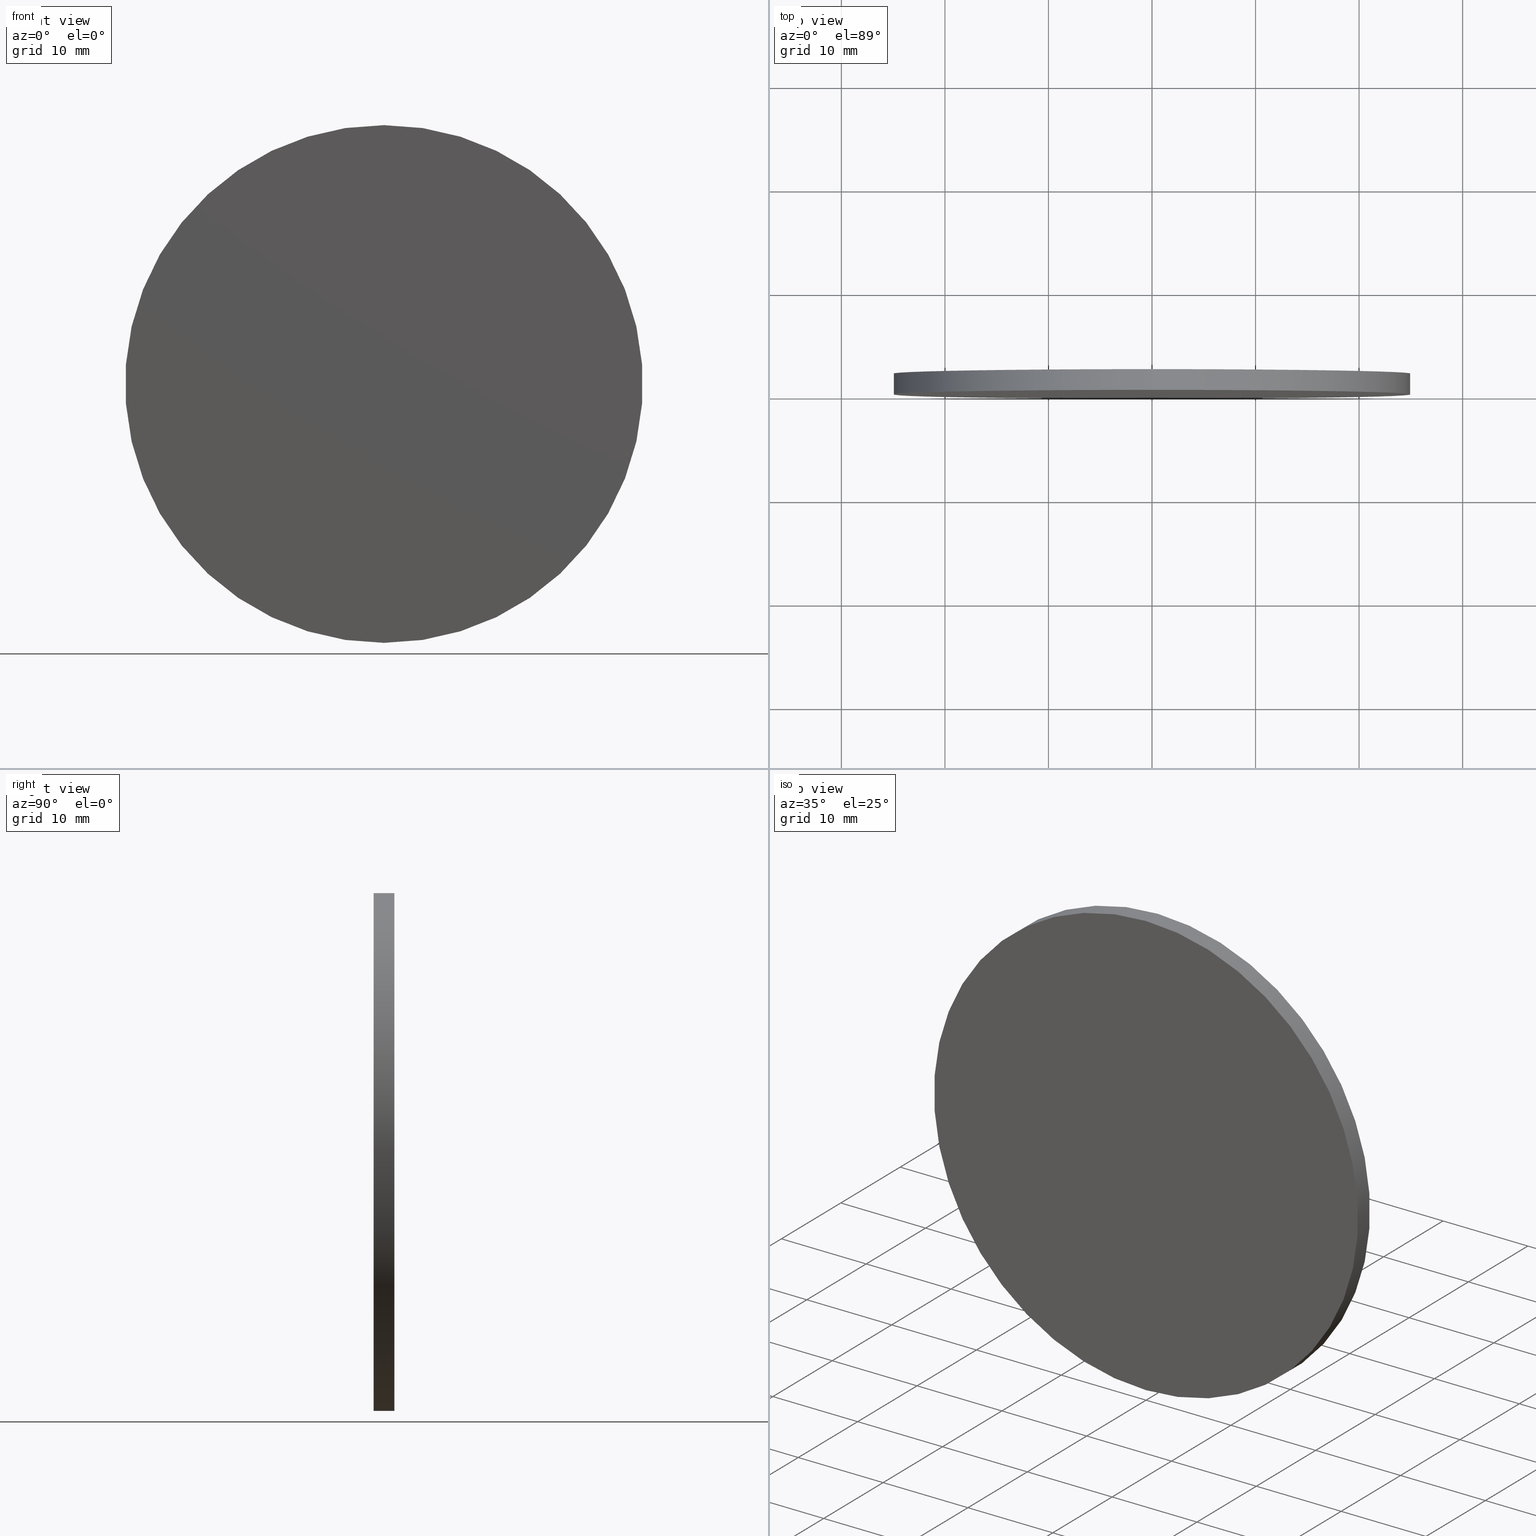
[diagram: canonical four-view strip — front | top / right | iso, engineering-drawing reading convention]
A machine part, canonical four-view strip (front | top / right | iso — engineering-drawing reading convention). The complete STEP part file that produces these views, byte-faithful:
ISO-10303-21;
HEADER;
FILE_DESCRIPTION (( 'STEP AP214' ),
    '1' );
FILE_NAME ('218558.STEP',
    '2019-07-29T07:33:09',
    ( 'user' ),
    ( '΢���й�' ),
    'SwSTEP 2.0',
    'SolidWorks 2016',
    '' );
FILE_SCHEMA (( 'AUTOMOTIVE_DESIGN' ));
ENDSEC;

DATA;
#1 = VERTEX_POINT ( 'NONE', #124 ) ;
#2 = ADVANCED_FACE ( 'NONE', ( #94 ), #73, .T. ) ;
#3 = SURFACE_STYLE_FILL_AREA ( #19 ) ;
#4 = PRESENTATION_LAYER_ASSIGNMENT (  '', '', ( #138 ) ) ;
#5 = APPLICATION_PROTOCOL_DEFINITION ( 'draft international standard', 'automotive_design', 1998, #77 ) ;
#6 = EDGE_LOOP ( 'NONE', ( #89, #108 ) ) ;
#7 = CARTESIAN_POINT ( 'NONE',  ( 3.061616997868383000E-015, 0.0000000000000000000, 25.00000000000000000 ) ) ;
#8 = SURFACE_STYLE_USAGE ( .BOTH. , #80 ) ;
#9 = COLOUR_RGB ( '',1.000000000000000000, 1.000000000000000000, 1.000000000000000000 ) ;
#10 = ORIENTED_EDGE ( 'NONE', *, *, #63, .F. ) ;
#11 = PRESENTATION_LAYER_ASSIGNMENT (  '', '', ( #140 ) ) ;
#12 = CYLINDRICAL_SURFACE ( 'NONE', #32, 25.00000000000000000 ) ;
#13 = MECHANICAL_DESIGN_GEOMETRIC_PRESENTATION_REPRESENTATION (  '', ( #138 ), #20 ) ;
#14 = ADVANCED_FACE ( 'NONE', ( #15 ), #102, .T. ) ;
#15 = FACE_OUTER_BOUND ( 'NONE', #100, .T. ) ;
#16 = SHAPE_DEFINITION_REPRESENTATION ( #24, #121 ) ;
#17 = PRODUCT_CONTEXT ( 'NONE', #67, 'mechanical' ) ;
#18 = DIRECTION ( 'NONE',  ( 0.0000000000000000000, -0.0000000000000000000, 1.000000000000000000 ) ) ;
#19 = FILL_AREA_STYLE ('',( #117 ) ) ;
#20 =( GEOMETRIC_REPRESENTATION_CONTEXT ( 3 ) GLOBAL_UNCERTAINTY_ASSIGNED_CONTEXT ( ( #120 ) ) GLOBAL_UNIT_ASSIGNED_CONTEXT ( ( #47, #112, #37 ) ) REPRESENTATION_CONTEXT ( 'NONE', 'WORKASPACE' ) );
#21 = CARTESIAN_POINT ( 'NONE',  ( 0.0000000000000000000, 2.000000000000000000, -25.00000000000000000 ) ) ;
#22 = DIRECTION ( 'NONE',  ( 0.0000000000000000000, 0.0000000000000000000, -1.000000000000000000 ) ) ;
#23 = FACE_OUTER_BOUND ( 'NONE', #36, .T. ) ;
#24 = PRODUCT_DEFINITION_SHAPE ( 'NONE', 'NONE',  #46 ) ;
#25 = CIRCLE ( 'NONE', #101, 25.00000000000000000 ) ;
#26 = DIRECTION ( 'NONE',  ( 0.0000000000000000000, 0.0000000000000000000, 1.000000000000000000 ) ) ;
#27 =( NAMED_UNIT ( * ) PLANE_ANGLE_UNIT ( ) SI_UNIT ( $, .RADIAN. ) );
#28 = DIRECTION ( 'NONE',  ( 0.0000000000000000000, 1.000000000000000000, 0.0000000000000000000 ) ) ;
#29 = DIRECTION ( 'NONE',  ( 0.0000000000000000000, -0.0000000000000000000, 1.000000000000000000 ) ) ;
#30 = DIRECTION ( 'NONE',  ( -0.0000000000000000000, -1.000000000000000000, -0.0000000000000000000 ) ) ;
#31 = ORIENTED_EDGE ( 'NONE', *, *, #87, .F. ) ;
#32 = AXIS2_PLACEMENT_3D ( 'NONE', #97, #72, #129 ) ;
#33 = PRESENTATION_STYLE_ASSIGNMENT (( #8 ) ) ;
#34 = VERTEX_POINT ( 'NONE', #21 ) ;
#35 = EDGE_CURVE ( 'NONE', #34, #1, #122, .T. ) ;
#36 = EDGE_LOOP ( 'NONE', ( #10, #86, #53, #56 ) ) ;
#37 =( NAMED_UNIT ( * ) SI_UNIT ( $, .STERADIAN. ) SOLID_ANGLE_UNIT ( ) );
#38 = AXIS2_PLACEMENT_3D ( 'NONE', #116, #92, #18 ) ;
#39 = DIRECTION ( 'NONE',  ( 0.0000000000000000000, 0.0000000000000000000, 1.000000000000000000 ) ) ;
#40 = CARTESIAN_POINT ( 'NONE',  ( 0.0000000000000000000, 0.0000000000000000000, 0.0000000000000000000 ) ) ;
#41 = DIRECTION ( 'NONE',  ( 0.0000000000000000000, 1.000000000000000000, 0.0000000000000000000 ) ) ;
#42 = AXIS2_PLACEMENT_3D ( 'NONE', #40, #26, #90 ) ;
#43 = CARTESIAN_POINT ( 'NONE',  ( 0.0000000000000000000, 2.000000000000000000, 0.0000000000000000000 ) ) ;
#44 = EDGE_CURVE ( 'NONE', #34, #64, #48, .T. ) ;
#45 = MECHANICAL_DESIGN_GEOMETRIC_PRESENTATION_REPRESENTATION (  '', ( #140 ), #132 ) ;
#46 = PRODUCT_DEFINITION ( 'δ֪', '', #52, #84 ) ;
#47 =( LENGTH_UNIT ( ) NAMED_UNIT ( * ) SI_UNIT ( .MILLI., .METRE. ) );
#48 = CIRCLE ( 'NONE', #83, 25.00000000000000000 ) ;
#49 = DIRECTION ( 'NONE',  ( 0.0000000000000000000, 0.0000000000000000000, 1.000000000000000000 ) ) ;
#50 = CIRCLE ( 'NONE', #66, 25.00000000000000000 ) ;
#51 = COLOUR_RGB ( '',1.000000000000000000, 1.000000000000000000, 1.000000000000000000 ) ;
#52 = PRODUCT_DEFINITION_FORMATION_WITH_SPECIFIED_SOURCE ( '�κ�', '', #65, .NOT_KNOWN. ) ;
#53 = ORIENTED_EDGE ( 'NONE', *, *, #109, .T. ) ;
#54 = ADVANCED_FACE ( 'NONE', ( #23 ), #12, .T. ) ;
#55 = EDGE_CURVE ( 'NONE', #1, #123, #85, .T. ) ;
#56 = ORIENTED_EDGE ( 'NONE', *, *, #35, .F. ) ;
#57 = SURFACE_SIDE_STYLE ('',( #111 ) ) ;
#58 =( LENGTH_UNIT ( ) NAMED_UNIT ( * ) SI_UNIT ( .MILLI., .METRE. ) );
#59 =( NAMED_UNIT ( * ) SI_UNIT ( $, .STERADIAN. ) SOLID_ANGLE_UNIT ( ) );
#60 = CARTESIAN_POINT ( 'NONE',  ( 0.0000000000000000000, 0.0000000000000000000, 0.0000000000000000000 ) ) ;
#61 = PRODUCT_RELATED_PRODUCT_CATEGORY ( 'part', '', ( #65 ) ) ;
#62 = ORIENTED_EDGE ( 'NONE', *, *, #55, .T. ) ;
#63 = EDGE_CURVE ( 'NONE', #64, #34, #25, .T. ) ;
#64 = VERTEX_POINT ( 'NONE', #137 ) ;
#65 = PRODUCT ( '218558', '218558', '', ( #17 ) ) ;
#66 = AXIS2_PLACEMENT_3D ( 'NONE', #126, #114, #39 ) ;
#67 = APPLICATION_CONTEXT ( 'automotive_design' ) ;
#68 =( LENGTH_UNIT ( ) NAMED_UNIT ( * ) SI_UNIT ( .MILLI., .METRE. ) );
#69 = AXIS2_PLACEMENT_3D ( 'NONE', #43, #106, #22 ) ;
#70 = PRESENTATION_STYLE_ASSIGNMENT (( #125 ) ) ;
#71 = DIRECTION ( 'NONE',  ( -0.0000000000000000000, -1.000000000000000000, -0.0000000000000000000 ) ) ;
#72 = DIRECTION ( 'NONE',  ( -0.0000000000000000000, -1.000000000000000000, -0.0000000000000000000 ) ) ;
#73 = PLANE ( 'NONE',  #95 ) ;
#74 = CARTESIAN_POINT ( 'NONE',  ( 0.0000000000000000000, 2.000000000000000000, 0.0000000000000000000 ) ) ;
#75 =( GEOMETRIC_REPRESENTATION_CONTEXT ( 3 ) GLOBAL_UNCERTAINTY_ASSIGNED_CONTEXT ( ( #88 ) ) GLOBAL_UNIT_ASSIGNED_CONTEXT ( ( #58, #27, #91 ) ) REPRESENTATION_CONTEXT ( 'NONE', 'WORKASPACE' ) );
#76 = MANIFOLD_SOLID_BREP ( '͹̨-����1', #130 ) ;
#77 = APPLICATION_CONTEXT ( 'automotive_design' ) ;
#78 = APPLICATION_PROTOCOL_DEFINITION ( 'draft international standard', 'automotive_design', 1998, #67 ) ;
#79 = ORIENTED_EDGE ( 'NONE', *, *, #35, .T. ) ;
#80 = SURFACE_SIDE_STYLE ('',( #3 ) ) ;
#81 = CARTESIAN_POINT ( 'NONE',  ( 0.0000000000000000000, 2.000000000000000000, -25.00000000000000000 ) ) ;
#82 = ORIENTED_EDGE ( 'NONE', *, *, #55, .F. ) ;
#83 = AXIS2_PLACEMENT_3D ( 'NONE', #118, #41, #105 ) ;
#84 = PRODUCT_DEFINITION_CONTEXT ( 'detailed design', #77, 'design' ) ;
#85 = CIRCLE ( 'NONE', #107, 25.00000000000000000 ) ;
#86 = ORIENTED_EDGE ( 'NONE', *, *, #87, .T. ) ;
#87 = EDGE_CURVE ( 'NONE', #64, #123, #127, .T. ) ;
#88 = UNCERTAINTY_MEASURE_WITH_UNIT (LENGTH_MEASURE( 1.000000000000000100E-005 ), #58, 'distance_accuracy_value', 'NONE');
#89 = ORIENTED_EDGE ( 'NONE', *, *, #44, .T. ) ;
#90 = DIRECTION ( 'NONE',  ( 1.000000000000000000, 0.0000000000000000000, 0.0000000000000000000 ) ) ;
#91 =( NAMED_UNIT ( * ) SI_UNIT ( $, .STERADIAN. ) SOLID_ANGLE_UNIT ( ) );
#92 = DIRECTION ( 'NONE',  ( 0.0000000000000000000, 1.000000000000000000, 0.0000000000000000000 ) ) ;
#93 = DIRECTION ( 'NONE',  ( 0.0000000000000000000, 0.0000000000000000000, 1.000000000000000000 ) ) ;
#94 = FACE_OUTER_BOUND ( 'NONE', #6, .T. ) ;
#95 = AXIS2_PLACEMENT_3D ( 'NONE', #74, #139, #29 ) ;
#96 = CARTESIAN_POINT ( 'NONE',  ( 3.061616997868383000E-015, 2.000000000000000000, 25.00000000000000000 ) ) ;
#97 = CARTESIAN_POINT ( 'NONE',  ( 0.0000000000000000000, 2.000000000000000000, 0.0000000000000000000 ) ) ;
#98 = FACE_OUTER_BOUND ( 'NONE', #131, .T. ) ;
#99 = ADVANCED_FACE ( 'NONE', ( #98 ), #103, .F. ) ;
#100 = EDGE_LOOP ( 'NONE', ( #31, #113, #79, #62 ) ) ;
#101 = AXIS2_PLACEMENT_3D ( 'NONE', #104, #28, #93 ) ;
#102 = CYLINDRICAL_SURFACE ( 'NONE', #69, 25.00000000000000000 ) ;
#103 = PLANE ( 'NONE',  #38 ) ;
#104 = CARTESIAN_POINT ( 'NONE',  ( 0.0000000000000000000, 2.000000000000000000, 0.0000000000000000000 ) ) ;
#105 = DIRECTION ( 'NONE',  ( 0.0000000000000000000, 0.0000000000000000000, 1.000000000000000000 ) ) ;
#106 = DIRECTION ( 'NONE',  ( -0.0000000000000000000, -1.000000000000000000, -0.0000000000000000000 ) ) ;
#107 = AXIS2_PLACEMENT_3D ( 'NONE', #60, #128, #49 ) ;
#108 = ORIENTED_EDGE ( 'NONE', *, *, #63, .T. ) ;
#109 = EDGE_CURVE ( 'NONE', #123, #1, #50, .T. ) ;
#110 = VECTOR ( 'NONE', #71, 1000.000000000000000 ) ;
#111 = SURFACE_STYLE_FILL_AREA ( #133 ) ;
#112 =( NAMED_UNIT ( * ) PLANE_ANGLE_UNIT ( ) SI_UNIT ( $, .RADIAN. ) );
#113 = ORIENTED_EDGE ( 'NONE', *, *, #44, .F. ) ;
#114 = DIRECTION ( 'NONE',  ( 0.0000000000000000000, 1.000000000000000000, 0.0000000000000000000 ) ) ;
#115 = UNCERTAINTY_MEASURE_WITH_UNIT (LENGTH_MEASURE( 1.000000000000000100E-005 ), #68, 'distance_accuracy_value', 'NONE');
#116 = CARTESIAN_POINT ( 'NONE',  ( 0.0000000000000000000, 0.0000000000000000000, 0.0000000000000000000 ) ) ;
#117 = FILL_AREA_STYLE_COLOUR ( '', #9 ) ;
#118 = CARTESIAN_POINT ( 'NONE',  ( 0.0000000000000000000, 2.000000000000000000, 0.0000000000000000000 ) ) ;
#119 = ORIENTED_EDGE ( 'NONE', *, *, #109, .F. ) ;
#120 = UNCERTAINTY_MEASURE_WITH_UNIT (LENGTH_MEASURE( 1.000000000000000100E-005 ), #47, 'distance_accuracy_value', 'NONE');
#121 = ADVANCED_BREP_SHAPE_REPRESENTATION ( '218558', ( #76, #42 ), #75 ) ;
#122 = LINE ( 'NONE', #81, #134 ) ;
#123 = VERTEX_POINT ( 'NONE', #7 ) ;
#124 = CARTESIAN_POINT ( 'NONE',  ( 0.0000000000000000000, 0.0000000000000000000, -25.00000000000000000 ) ) ;
#125 = SURFACE_STYLE_USAGE ( .BOTH. , #57 ) ;
#126 = CARTESIAN_POINT ( 'NONE',  ( 0.0000000000000000000, 0.0000000000000000000, 0.0000000000000000000 ) ) ;
#127 = LINE ( 'NONE', #96, #110 ) ;
#128 = DIRECTION ( 'NONE',  ( 0.0000000000000000000, 1.000000000000000000, 0.0000000000000000000 ) ) ;
#129 = DIRECTION ( 'NONE',  ( 0.0000000000000000000, 0.0000000000000000000, -1.000000000000000000 ) ) ;
#130 = CLOSED_SHELL ( 'NONE', ( #54, #14, #2, #99 ) ) ;
#131 = EDGE_LOOP ( 'NONE', ( #82, #119 ) ) ;
#132 =( GEOMETRIC_REPRESENTATION_CONTEXT ( 3 ) GLOBAL_UNCERTAINTY_ASSIGNED_CONTEXT ( ( #115 ) ) GLOBAL_UNIT_ASSIGNED_CONTEXT ( ( #68, #136, #59 ) ) REPRESENTATION_CONTEXT ( 'NONE', 'WORKASPACE' ) );
#133 = FILL_AREA_STYLE ('',( #135 ) ) ;
#134 = VECTOR ( 'NONE', #30, 1000.000000000000000 ) ;
#135 = FILL_AREA_STYLE_COLOUR ( '', #51 ) ;
#136 =( NAMED_UNIT ( * ) PLANE_ANGLE_UNIT ( ) SI_UNIT ( $, .RADIAN. ) );
#137 = CARTESIAN_POINT ( 'NONE',  ( 3.061616997868383000E-015, 2.000000000000000000, 25.00000000000000000 ) ) ;
#138 = STYLED_ITEM ( 'NONE', ( #70 ), #121 ) ;
#139 = DIRECTION ( 'NONE',  ( 0.0000000000000000000, 1.000000000000000000, 0.0000000000000000000 ) ) ;
#140 = STYLED_ITEM ( 'NONE', ( #33 ), #76 ) ;
ENDSEC;
END-ISO-10303-21;
